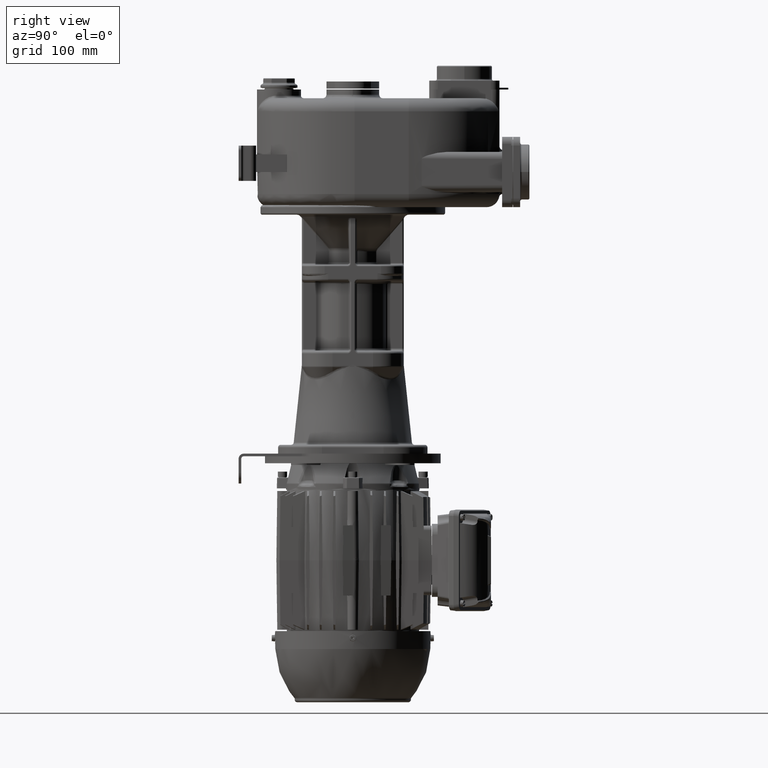
[diagram: clean part render]
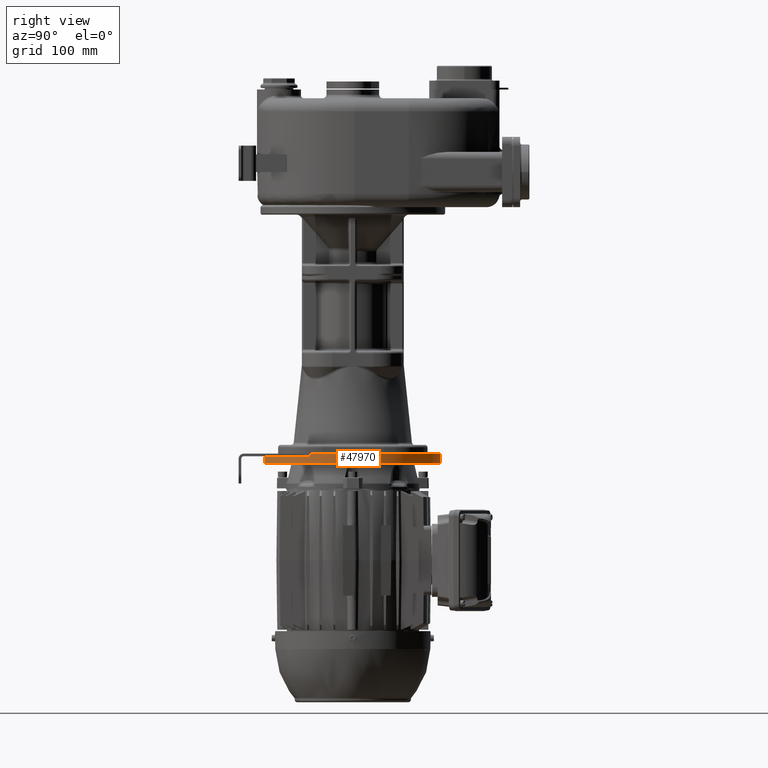
[diagram: same view with one face highlighted and labeled with its STEP entity id]
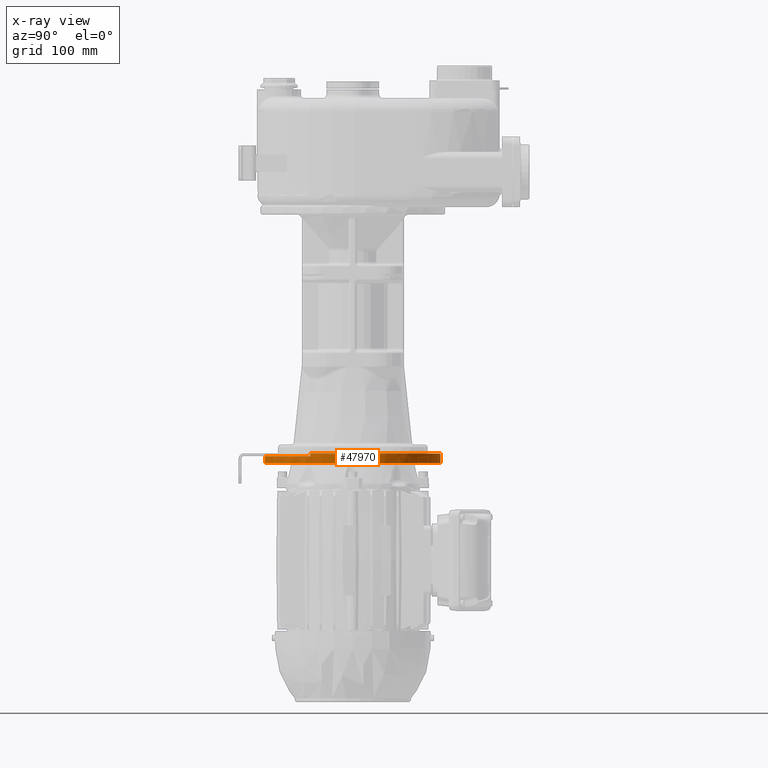
[diagram: x-ray of the same camera — body ghosted, the highlighted face saturated]
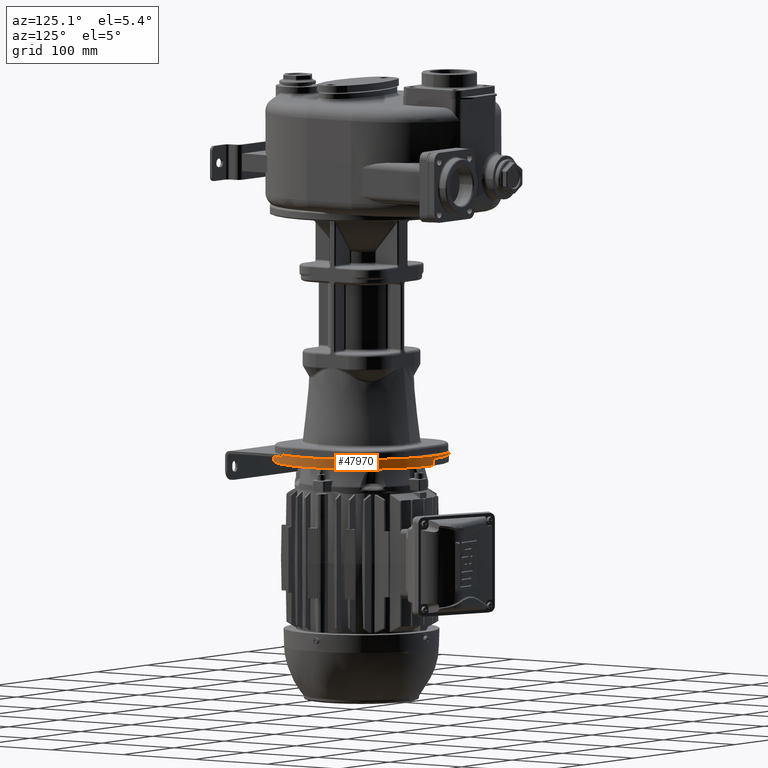
[diagram: same view with one face highlighted and labeled with its STEP entity id]
A machine part, right view. The second image highlights one B-rep face of the part: STEP entity #47970.
The next image is the same camera in x-ray: the body ghosted, the highlighted face saturated — about 0% of this face is hidden behind the body in this view.
A second angle (auxiliary view) of the same face is appended — the face is thin or edge-on in the first view.
In plain terms, the highlighted cylindrical surface (partial cylindrical patch) has radius 100 mm, axis along (0, 0, -1).
Its self-contained STEP definition (entity closure, byte-faithful):
#3852=CARTESIAN_POINT('',(1.350362312003E-14,1.1E2,-3.415E2));
#3853=DIRECTION('',(0.E0,0.E0,-1.E0));
#3854=DIRECTION('',(0.E0,1.E0,0.E0));
#3855=AXIS2_PLACEMENT_3D('',#3852,#3853,#3854);
#4004=CARTESIAN_POINT('',(1.350362312003E-14,1.1E2,-3.335E2));
#4005=DIRECTION('',(0.E0,0.E0,-1.E0));
#4006=DIRECTION('',(-8.75E-1,-4.841229182759E-1,0.E0));
#4007=AXIS2_PLACEMENT_3D('',#4004,#4005,#4006);
#4009=DIRECTION('',(0.E0,0.E0,1.E0));
#4010=VECTOR('',#4009,8.000000000001E0);
#4011=CARTESIAN_POINT('',(-5.295010221665E-14,2.1E2,-3.415E2));
#4012=LINE('',#4011,#4010);
#4013=DIRECTION('',(0.E0,0.E0,1.E0));
#4014=VECTOR('',#4013,3.E0);
#4015=CARTESIAN_POINT('',(8.75E1,6.158770817241E1,-3.335E2));
#4016=LINE('',#4015,#4014);
#4017=DIRECTION('',(0.E0,1.894780628694E-14,1.E0));
#4018=VECTOR('',#4017,3.E0);
#4019=CARTESIAN_POINT('',(-8.75E1,6.158770817241E1,-3.335E2));
#4020=LINE('',#4019,#4018);
#4021=DIRECTION('',(0.E0,0.E0,1.E0));
#4022=VECTOR('',#4021,8.000000000001E0);
#4023=CARTESIAN_POINT('',(2.309718225662E-14,1.E1,-3.415E2));
#4024=LINE('',#4023,#4022);
#4025=CARTESIAN_POINT('',(1.350362312003E-14,1.1E2,-3.335E2));
#4026=DIRECTION('',(0.E0,0.E0,-1.E0));
#4027=DIRECTION('',(8.75E-1,-4.841229182759E-1,0.E0));
#4028=AXIS2_PLACEMENT_3D('',#4025,#4026,#4027);
#4053=CARTESIAN_POINT('',(1.350362312003E-14,1.1E2,-3.305E2));
#4054=DIRECTION('',(0.E0,0.E0,-1.E0));
#4055=DIRECTION('',(-8.75E-1,-4.841229182759E-1,0.E0));
#4056=AXIS2_PLACEMENT_3D('',#4053,#4054,#4055);
#39880=CARTESIAN_POINT('',(-8.75E1,6.158770817241E1,-3.305E2));
#39881=VERTEX_POINT('',#39880);
#39882=CARTESIAN_POINT('',(8.75E1,6.158770817241E1,-3.305E2));
#39883=VERTEX_POINT('',#39882);
#43073=CARTESIAN_POINT('',(-8.526512829121E-14,2.1E2,-3.415E2));
#43074=CARTESIAN_POINT('',(3.570100055274E-14,1.E1,-3.415E2));
#43075=VERTEX_POINT('',#43073);
#43076=VERTEX_POINT('',#43074);
#44392=CARTESIAN_POINT('',(8.75E1,6.158770817241E1,-3.335E2));
#44393=CARTESIAN_POINT('',(1.350362312003E-14,1.E1,-3.335E2));
#44394=VERTEX_POINT('',#44392);
#44395=VERTEX_POINT('',#44393);
#44396=CARTESIAN_POINT('',(-8.75E1,6.158770817241E1,-3.335E2));
#44397=VERTEX_POINT('',#44396);
#44398=CARTESIAN_POINT('',(0.E0,2.1E2,-3.335E2));
#44399=VERTEX_POINT('',#44398);
#47948=CARTESIAN_POINT('',(1.350362312003E-14,1.1E2,-3.32E2));
#47949=DIRECTION('',(0.E0,0.E0,-1.E0));
#47950=DIRECTION('',(-8.5E-1,-5.267826876426E-1,0.E0));
#47951=AXIS2_PLACEMENT_3D('',#47948,#47949,#47950);
#47952=CYLINDRICAL_SURFACE('',#47951,1.E2);
#47954=ORIENTED_EDGE('',*,*,#47953,.T.);
#47956=ORIENTED_EDGE('',*,*,#47955,.F.);
#47957=ORIENTED_EDGE('',*,*,#47867,.T.);
#47959=ORIENTED_EDGE('',*,*,#47958,.T.);
#47961=ORIENTED_EDGE('',*,*,#47960,.F.);
#47963=ORIENTED_EDGE('',*,*,#47962,.T.);
#47965=ORIENTED_EDGE('',*,*,#47964,.F.);
#47967=ORIENTED_EDGE('',*,*,#47966,.F.);
#47968=EDGE_LOOP('',(#47954,#47956,#47957,#47959,#47961,#47963,#47965,#47967));
#47969=FACE_OUTER_BOUND('',#47968,.F.);
#47970=ADVANCED_FACE('',(#47969),#47952,.T.);
#3856=CIRCLE('',#3855,1.E2);
#4008=CIRCLE('',#4007,1.E2);
#4029=CIRCLE('',#4028,1.E2);
#4057=CIRCLE('',#4056,1.E2);
#47867=EDGE_CURVE('',#43075,#43076,#3856,.T.);
#47953=EDGE_CURVE('',#44397,#44399,#4008,.T.);
#47955=EDGE_CURVE('',#43075,#44399,#4012,.T.);
#47958=EDGE_CURVE('',#43076,#44395,#4024,.T.);
#47960=EDGE_CURVE('',#44394,#44395,#4029,.T.);
#47962=EDGE_CURVE('',#44394,#39883,#4016,.T.);
#47964=EDGE_CURVE('',#39881,#39883,#4057,.T.);
#47966=EDGE_CURVE('',#44397,#39881,#4020,.T.);